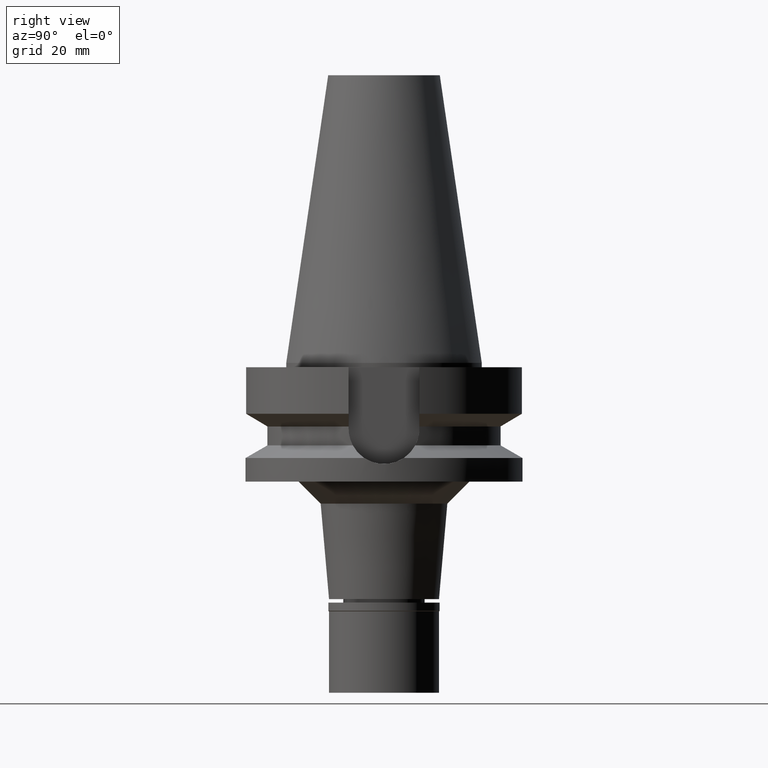
[diagram: clean part render]
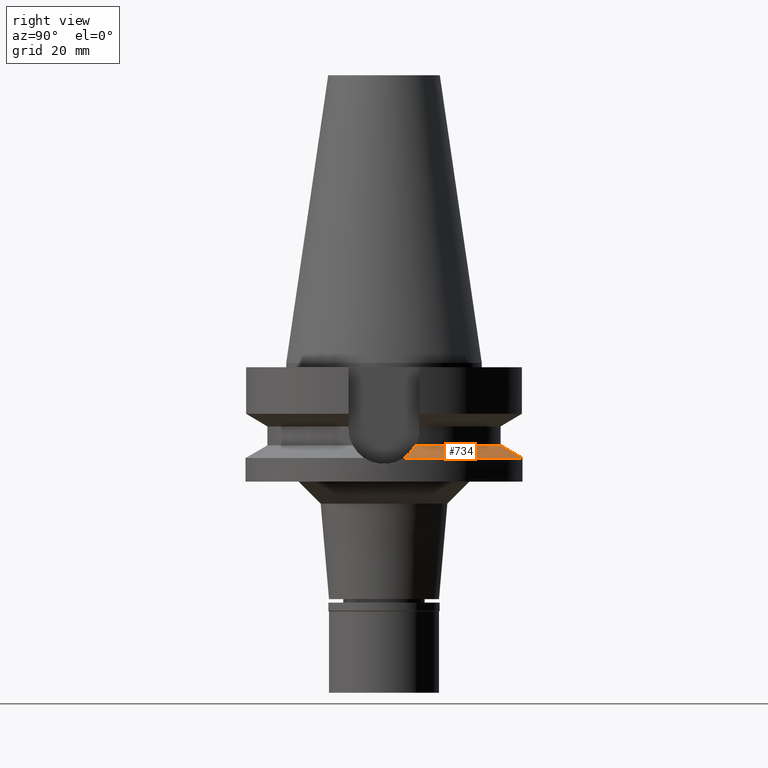
[diagram: same view with one face highlighted and labeled with its STEP entity id]
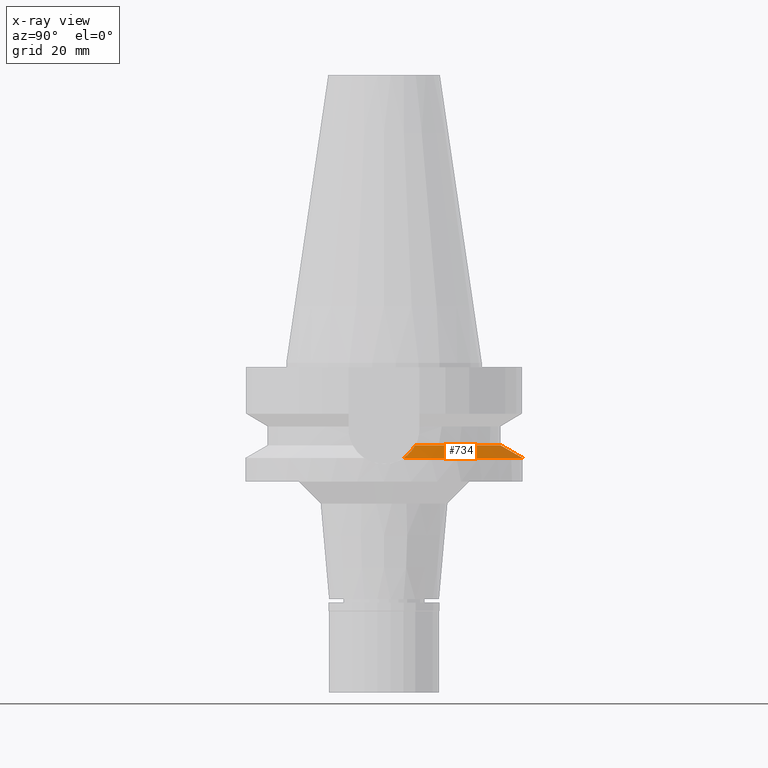
[diagram: x-ray of the same camera — body ghosted, the highlighted face saturated]
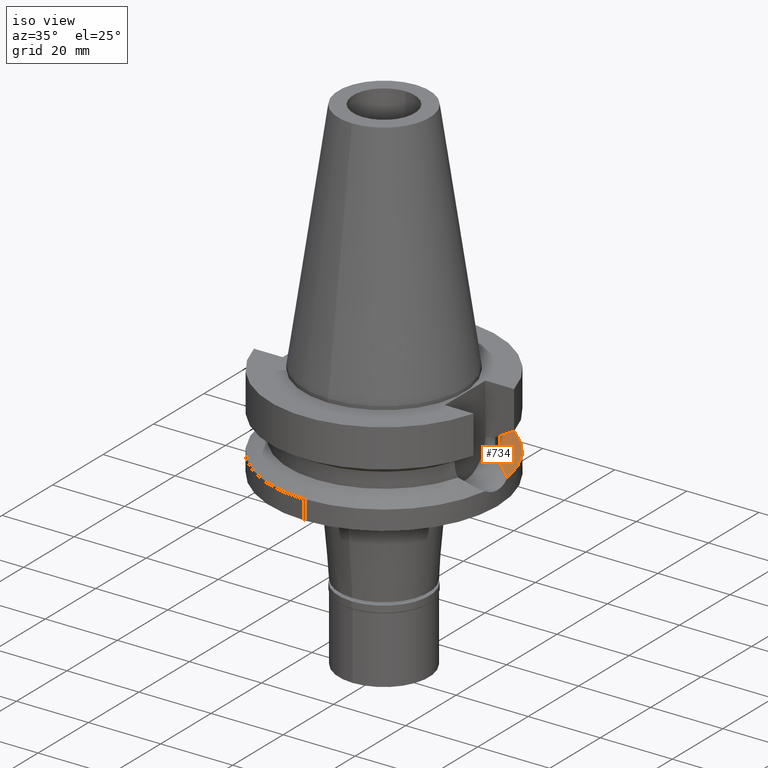
[diagram: same view with one face highlighted and labeled with its STEP entity id]
A machine part, right view. The second image highlights one B-rep face of the part: STEP entity #734.
The next image is the same camera in x-ray: the body ghosted, the highlighted face saturated — about 0% of this face is hidden behind the body in this view.
A second angle (iso view) of the same face is appended — the face is thin or edge-on in the first view.
In plain terms, the highlighted conical surface has half-angle 60 deg.
Its self-contained STEP definition (entity closure, byte-faithful):
#128 = CARTESIAN_POINT ( 'NONE',  ( 29.71584991543793564, 5.436399678099689048, -20.88904744693812177 ) ) ;
#145 = B_SPLINE_CURVE_WITH_KNOTS ( 'NONE', 3,
 ( #2770, #536, #1734, #2980, #1746, #290, #1499, #597, #2003, #2995, #307, #2457, #2736 ),
 .UNSPECIFIED., .F., .F.,
 ( 4, 2, 2, 1, 2, 2, 4 ),
 ( 0.0000000000000000000, 0.2500000000000060507, 0.3750000000000089928, 0.4375000000000095479, 0.4687500000000093814, 0.5000000000000092149, 1.000000000000000000 ),
 .UNSPECIFIED. ) ;
#151 = CARTESIAN_POINT ( 'NONE',  ( 30.50011044512838865, 4.971375080549919723, -21.28889166153409107 ) ) ;
#159 = CARTESIAN_POINT ( 'NONE',  ( 25.53175183775000079, 7.097862220092999941, -18.74774300138999905 ) ) ;
#225 = CONICAL_SURFACE ( 'NONE', #927, 29.00000000000000000, 1.047197551196400456 ) ;
#290 = CARTESIAN_POINT ( 'NONE',  ( -28.24957080510539953, 6.153788910806230028, -20.14042599201884443 ) ) ;
#294 = DIRECTION ( 'NONE',  ( 0.0000000000000000000, -1.000000000000000000, 0.0000000000000000000 ) ) ;
#307 = CARTESIAN_POINT ( 'NONE',  ( -29.75857649111524950, 5.446858037224162175, -20.91103993081663859 ) ) ;
#398 = CARTESIAN_POINT ( 'NONE',  ( 27.91865298957415220, 6.325500164458834895, -19.97144598200483401 ) ) ;
#504 = CARTESIAN_POINT ( 'NONE',  ( 0.0000000000000000000, 0.0000000000000000000, -18.74774300138999905 ) ) ;
#536 = CARTESIAN_POINT ( 'NONE',  ( -26.17291654574146875, 6.921617028666480209, -19.07713972076425080 ) ) ;
#597 = CARTESIAN_POINT ( 'NONE',  ( -28.61779285636010073, 5.989666203958305069, -20.32848408072327473 ) ) ;
#616 = CARTESIAN_POINT ( 'NONE',  ( 28.96325773064398490, 5.826423038440005087, -20.50489404030322049 ) ) ;
#635 = CARTESIAN_POINT ( 'NONE',  ( 30.85576571810593549, 4.730763021945204372, -21.46993834965712367 ) ) ;
#734 = ADVANCED_FACE ( 'NONE', ( #2964 ), #225, .T. ) ;
#740 = EDGE_CURVE ( 'NONE', #2783, #2104, #1022, .T. ) ;
#866 = CARTESIAN_POINT ( 'NONE',  ( 31.17899877608999759, 4.485536235554000051, -21.63449434733000132 ) ) ;
#876 = EDGE_CURVE ( 'NONE', #2731, #2783, #1456, .T. ) ;
#927 = AXIS2_PLACEMENT_3D ( 'NONE', #1259, #1520, #294 ) ;
#954 = ORIENTED_EDGE ( 'NONE', *, *, #740, .F. ) ;
#1000 = DIRECTION ( 'NONE',  ( 0.0000000000000000000, 0.0000000000000000000, 1.000000000000000000 ) ) ;
#1015 = CARTESIAN_POINT ( 'NONE',  ( -25.53175183775000079, 7.097862220092999941, -18.74774300138999905 ) ) ;
#1022 = CIRCLE ( 'NONE', #2855, 26.49999999999998224 ) ;
#1026 = EDGE_LOOP ( 'NONE', ( #2938, #954, #1147, #1593, #2636 ) ) ;
#1147 = ORIENTED_EDGE ( 'NONE', *, *, #876, .F. ) ;
#1196 = CARTESIAN_POINT ( 'NONE',  ( -31.17899877608999759, 4.485536235554000051, -21.63449434733000132 ) ) ;
#1259 = CARTESIAN_POINT ( 'NONE',  ( 0.0000000000000000000, 0.0000000000000000000, -20.19111867435999841 ) ) ;
#1345 = CARTESIAN_POINT ( 'NONE',  ( 31.17899877608999759, 4.485536235554000051, -21.63449434733000132 ) ) ;
#1356 = CARTESIAN_POINT ( 'NONE',  ( 29.91799421317181640, 5.321495938950360660, -20.99215072584089370 ) ) ;
#1387 = CARTESIAN_POINT ( 'NONE',  ( 0.0000000000000000000, 0.0000000000000000000, -21.63449434733000132 ) ) ;
#1456 = B_SPLINE_CURVE_WITH_KNOTS ( 'NONE', 3,
 ( #1345, #635, #151, #1356, #128, #2279, #2057, #1538, #616, #2805, #398, #3014, #1781 ),
 .UNSPECIFIED., .F., .F.,
 ( 4, 2, 2, 1, 2, 2, 4 ),
 ( 0.0000000000000000000, 0.2500000000000016653, 0.3750000000000021649, 0.4375000000000021649, 0.4687500000000015543, 0.5000000000000008882, 1.000000000000000000 ),
 .UNSPECIFIED. ) ;
#1485 = CIRCLE ( 'NONE', #2351, 31.50000000000000000 ) ;
#1499 = CARTESIAN_POINT ( 'NONE',  ( -28.43675414381653255, 6.072261174700262387, -20.23603577456972502 ) ) ;
#1520 = DIRECTION ( 'NONE',  ( 0.0000000000000000000, 0.0000000000000000000, -1.000000000000000000 ) ) ;
#1538 = CARTESIAN_POINT ( 'NONE',  ( 29.07446182169639926, 5.771754097303634090, -20.56167602968306696 ) ) ;
#1541 = CARTESIAN_POINT ( 'NONE',  ( 0.0000000000000000000, 31.50000000000000000, -21.63449434733000132 ) ) ;
#1563 = DIRECTION ( 'NONE',  ( 0.0000000000000000000, 0.0000000000000000000, -1.000000000000000000 ) ) ;
#1593 = ORIENTED_EDGE ( 'NONE', *, *, #2676, .F. ) ;
#1733 = AXIS2_PLACEMENT_3D ( 'NONE', #2488, #1563, #1808 ) ;
#1734 = CARTESIAN_POINT ( 'NONE',  ( -26.77038613431905745, 6.728085428682077485, -19.38370790967969981 ) ) ;
#1746 = CARTESIAN_POINT ( 'NONE',  ( -27.86701129279300915, 6.315183538178430922, -19.94494911171929274 ) ) ;
#1781 = CARTESIAN_POINT ( 'NONE',  ( 25.53175183775000079, 7.097862220092999941, -18.74774300138999905 ) ) ;
#1808 = DIRECTION ( 'NONE',  ( -0.9898094849552905306, 0.1423979757318985240, 0.0000000000000000000 ) ) ;
#1956 = DIRECTION ( 'NONE',  ( 0.9634623335000935818, 0.2678438573619981722, 0.0000000000000000000 ) ) ;
#2003 = CARTESIAN_POINT ( 'NONE',  ( -28.73711985890745879, 5.934384893717068898, -20.38941799962611867 ) ) ;
#2017 = VERTEX_POINT ( 'NONE', #1541 ) ;
#2057 = CARTESIAN_POINT ( 'NONE',  ( 29.23974816694718015, 5.689298291005127517, -20.64606704607207988 ) ) ;
#2104 = VERTEX_POINT ( 'NONE', #1015 ) ;
#2279 = CARTESIAN_POINT ( 'NONE',  ( 29.40047513821453862, 5.605535570480433272, -20.72810760347493186 ) ) ;
#2296 = DIRECTION ( 'NONE',  ( 0.0000000000000000000, 0.0000000000000000000, -1.000000000000000000 ) ) ;
#2351 = AXIS2_PLACEMENT_3D ( 'NONE', #1387, #2296, #2607 ) ;
#2362 = VERTEX_POINT ( 'NONE', #1196 ) ;
#2457 = CARTESIAN_POINT ( 'NONE',  ( -30.53344319890117120, 4.975299011121801840, -21.30584590176887616 ) ) ;
#2488 = CARTESIAN_POINT ( 'NONE',  ( 0.0000000000000000000, 0.0000000000000000000, -21.63449434733000132 ) ) ;
#2583 = EDGE_CURVE ( 'NONE', #2104, #2362, #145, .T. ) ;
#2607 = DIRECTION ( 'NONE',  ( 0.0000000000000000000, 1.000000000000000000, 0.0000000000000000000 ) ) ;
#2608 = EDGE_CURVE ( 'NONE', #2362, #2017, #2767, .T. ) ;
#2636 = ORIENTED_EDGE ( 'NONE', *, *, #2608, .F. ) ;
#2676 = EDGE_CURVE ( 'NONE', #2017, #2731, #1485, .T. ) ;
#2731 = VERTEX_POINT ( 'NONE', #866 ) ;
#2736 = CARTESIAN_POINT ( 'NONE',  ( -31.17899877608999759, 4.485536235554000051, -21.63449434733000132 ) ) ;
#2767 = CIRCLE ( 'NONE', #1733, 31.50000000000001421 ) ;
#2770 = CARTESIAN_POINT ( 'NONE',  ( -25.53175183775000079, 7.097862220092999941, -18.74774300138999905 ) ) ;
#2783 = VERTEX_POINT ( 'NONE', #159 ) ;
#2805 = CARTESIAN_POINT ( 'NONE',  ( 28.90877640193184561, 5.852829862473429401, -20.47707339415533667 ) ) ;
#2855 = AXIS2_PLACEMENT_3D ( 'NONE', #504, #1000, #1956 ) ;
#2938 = ORIENTED_EDGE ( 'NONE', *, *, #2583, .F. ) ;
#2964 = FACE_OUTER_BOUND ( 'NONE', #1026, .T. ) ;
#2980 = CARTESIAN_POINT ( 'NONE',  ( -27.60104783806462336, 6.420568128767468963, -19.80895099222617262 ) ) ;
#2995 = CARTESIAN_POINT ( 'NONE',  ( -28.79788753783334698, 5.905781655950244513, -20.42044829908146042 ) ) ;
#3014 = CARTESIAN_POINT ( 'NONE',  ( 26.81239231940290679, 6.745836096347836097, -19.40566875447201411 ) ) ;